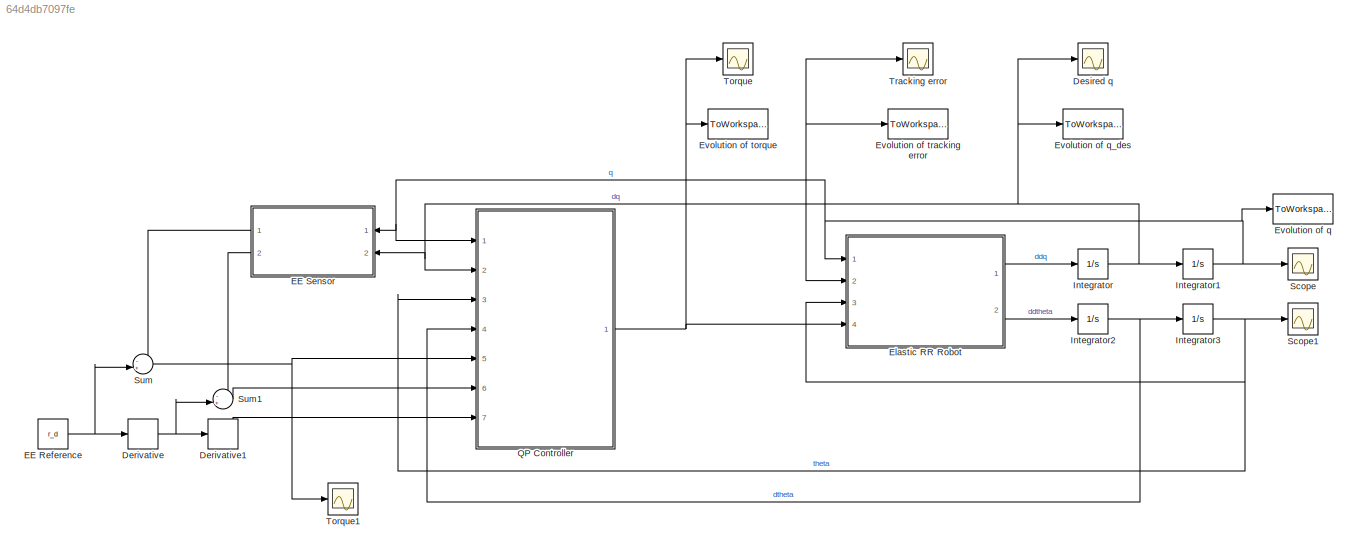
MODEL slx_64d4db7097fe
KIND model
CONFIG AbsTol = auto
CONFIG EnableMultiTasking = off
CONFIG FixedStep = auto
CONFIG MaxStep = auto
CONFIG MinStep = auto
CONFIG RelTol = 1e-3
CONFIG SampleTimeConstraint = Unconstrained
CONFIG SolverName = VariableStepAuto
CONFIG StartTime = 0.0
CONFIG StopTime = 10.0
BLOCK [Derivative] Derivative
BLOCK [Derivative] Derivative1
BLOCK [Scope] Desired q
  Floating = off
  NumInputPorts = 1
  Ports = [1]
  ScopeSpecificationString = Simulink.scopes.TimeScopeBlockCfg('CurrentConfiguration', extmgr.ConfigurationSet(extmgr.Configuration('Core','General UI',true),extmgr.Configuration('Core','Source UI',true),extmgr.Configuration('Sources','WiredSimulink',true,'DataLoggingVariableName','ScopeData2'),extmgr.Configuration('Visuals','Time Domain',true,'SerializedDisplays',{struct('MinYLimReal','-26182722.83835','MaxYLimReal','1748209...<+1483ch>
BLOCK [Constant] EE Reference
  Value = r_d
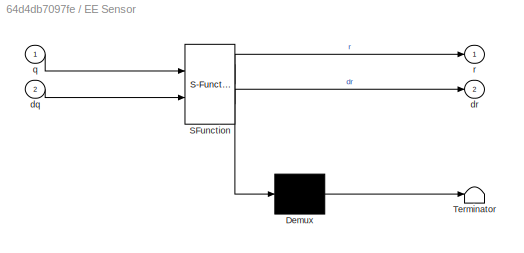
BLOCK [SubSystem] EE Sensor
  ErrorFcn = Stateflow.Translate.translate
  PermitHierarchicalResolution = ExplicitOnly
  Ports = [2, 2]
  RequestExecContextInheritance = off
  SFBlockType = MATLAB Function
  TreatAsAtomicUnit = on
BLOCK [Demux] EE Sensor/ Demux 
  Outputs = 1
  Ports = [1, 1]
BLOCK [S-Function] EE Sensor/ SFunction 
  EnableBusSupport = on
  FunctionName = sf_sfun
  Parameters = a1,a2
  PortCounts = [2 3]
  Ports = [2, 3]
  SFcnIsStateOwnerBlock = off
  SFunctionDeploymentMode = off
  Tag = Stateflow S-Function 3
BLOCK [Terminator] EE Sensor/ Terminator 
BLOCK [Inport] EE Sensor/dq
  Port = 2
BLOCK [Outport] EE Sensor/dr
  Port = 2
BLOCK [Inport] EE Sensor/q
BLOCK [Outport] EE Sensor/r
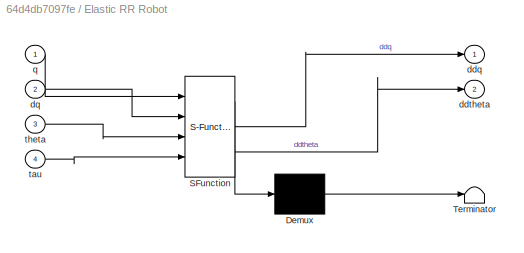
BLOCK [SubSystem] Elastic RR Robot
  ErrorFcn = Stateflow.Translate.translate
  PermitHierarchicalResolution = ExplicitOnly
  Ports = [4, 2]
  RequestExecContextInheritance = off
  SFBlockType = MATLAB Function
  TreatAsAtomicUnit = on
BLOCK [Demux] Elastic RR Robot/ Demux 
  Outputs = 1
  Ports = [1, 1]
BLOCK [S-Function] Elastic RR Robot/ SFunction 
  EnableBusSupport = on
  FunctionName = sf_sfun
  Parameters = B,K,S,a1,a2,m1,m2
  PortCounts = [4 3]
  Ports = [4, 3]
  SFcnIsStateOwnerBlock = off
  SFunctionDeploymentMode = off
  Tag = Stateflow S-Function 2
BLOCK [Terminator] Elastic RR Robot/ Terminator 
BLOCK [Outport] Elastic RR Robot/ddq
BLOCK [Outport] Elastic RR Robot/ddtheta
  Port = 2
BLOCK [Inport] Elastic RR Robot/dq
  Port = 2
BLOCK [Inport] Elastic RR Robot/q
BLOCK [Inport] Elastic RR Robot/tau
  Port = 4
BLOCK [Inport] Elastic RR Robot/theta
  Port = 3
BLOCK [ToWorkspace] Evolution of q
  FixptAsFi = on
  MaxDataPoints = inf
  Ports = [1]
  SampleTime = -1
  SaveFormat = Timeseries
  VariableName = q_out
BLOCK [ToWorkspace] Evolution of q_des
  FixptAsFi = on
  MaxDataPoints = inf
  Ports = [1]
  SampleTime = -1
  SaveFormat = Timeseries
  VariableName = q_des_out
BLOCK [ToWorkspace] Evolution of torque
  FixptAsFi = on
  MaxDataPoints = inf
  Ports = [1]
  SampleTime = -1
  SaveFormat = Timeseries
  VariableName = tau_out
BLOCK [ToWorkspace] Evolution of tracking error
  FixptAsFi = on
  MaxDataPoints = inf
  Ports = [1]
  SampleTime = -1
  SaveFormat = Timeseries
  VariableName = e_out
BLOCK [Integrator] Integrator
  InitialCondition = dq0
  Ports = [1, 1]
BLOCK [Integrator] Integrator1
  InitialCondition = q0
  Ports = [1, 1]
BLOCK [Integrator] Integrator2
  InitialCondition = dtheta0
  Ports = [1, 1]
BLOCK [Integrator] Integrator3
  InitialCondition = theta0
  Ports = [1, 1]
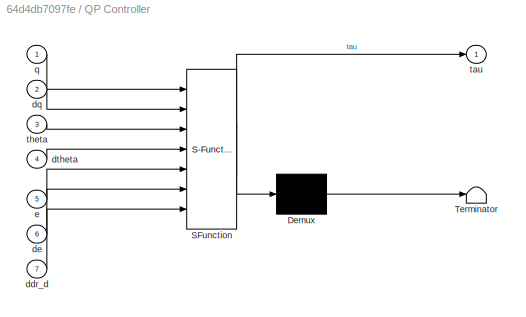
BLOCK [SubSystem] QP Controller
  ErrorFcn = Stateflow.Translate.translate
  PermitHierarchicalResolution = ExplicitOnly
  Ports = [7, 1]
  RequestExecContextInheritance = off
  SFBlockType = MATLAB Function
  TreatAsAtomicUnit = on
BLOCK [Demux] QP Controller/ Demux 
  Outputs = 1
  Ports = [1, 1]
BLOCK [S-Function] QP Controller/ SFunction 
  EnableBusSupport = on
  FunctionName = sf_sfun
  Parameters = B,Kbar,Kp,Kv,S,a1,a2,m1,m2
  PortCounts = [7 2]
  Ports = [7, 2]
  SFcnIsStateOwnerBlock = off
  SFunctionDeploymentMode = off
  Tag = Stateflow S-Function 1
BLOCK [Terminator] QP Controller/ Terminator 
BLOCK [Inport] QP Controller/ddr_d
  Port = 7
BLOCK [Inport] QP Controller/de
  Port = 6
BLOCK [Inport] QP Controller/dq
  Port = 2
BLOCK [Inport] QP Controller/dtheta
  Port = 4
BLOCK [Inport] QP Controller/e
  Port = 5
BLOCK [Inport] QP Controller/q
BLOCK [Outport] QP Controller/tau
BLOCK [Inport] QP Controller/theta
  Port = 3
BLOCK [Scope] Scope
  Floating = off
  NumInputPorts = 1
  Ports = [1]
  ScopeSpecificationString = Simulink.scopes.TimeScopeBlockCfg('CurrentConfiguration', extmgr.ConfigurationSet(extmgr.Configuration('Core','General UI',true),extmgr.Configuration('Core','Source UI',true),extmgr.Configuration('Sources','WiredSimulink',true),extmgr.Configuration('Visuals','Time Domain',true,'SerializedDisplays',{struct('MinYLimReal','-2.06309','MaxYLimReal','0.81101','YLabelReal','','MinYLimMag','0.00000','MaxY...<+1356ch>
BLOCK [Scope] Scope1
  Floating = off
  NumInputPorts = 1
  Ports = [1]
  ScopeSpecificationString = Simulink.scopes.TimeScopeBlockCfg('CurrentConfiguration', extmgr.ConfigurationSet(extmgr.Configuration('Core','General UI',true),extmgr.Configuration('Core','Source UI',true),extmgr.Configuration('Sources','WiredSimulink',true,'DataLoggingVariableName','ScopeData1'),extmgr.Configuration('Visuals','Time Domain',true,'SerializedDisplays',{struct('MinYLimReal','-1.76715','MaxYLimReal','0.19635','YLab...<+1376ch>
BLOCK [Sum] Sum
  Inputs = -+|
  Ports = [2, 1]
BLOCK [Sum] Sum1
  Inputs = -+|
  Ports = [2, 1]
BLOCK [Scope] Torque
  Floating = off
  NumInputPorts = 1
  Ports = [1]
  ScopeSpecificationString = Simulink.scopes.TimeScopeBlockCfg('CurrentConfiguration', extmgr.ConfigurationSet(extmgr.Configuration('Core','General UI',true),extmgr.Configuration('Core','Source UI',true),extmgr.Configuration('Sources','WiredSimulink',true,'DataLoggingVariableName','ScopeData1'),extmgr.Configuration('Visuals','Time Domain',true,'SerializedDisplays',{struct('MinYLimReal','-0.000000000008','MaxYLimReal','0.00000...<+1517ch>
BLOCK [Scope] Torque1
  Floating = off
  NumInputPorts = 1
  Ports = [1]
  ScopeSpecificationString = Simulink.scopes.TimeScopeBlockCfg('CurrentConfiguration', extmgr.ConfigurationSet(extmgr.Configuration('Core','General UI',true),extmgr.Configuration('Core','Source UI',true),extmgr.Configuration('Sources','WiredSimulink',true,'DataLoggingVariableName','ScopeData1'),extmgr.Configuration('Visuals','Time Domain',true,'SerializedDisplays',{struct('MinYLimReal','-0.10391','MaxYLimReal','1.19041','YLab...<+1441ch>
BLOCK [Scope] Tracking error
  Floating = off
  NumInputPorts = 1
  Ports = [1]
  ScopeSpecificationString = Simulink.scopes.TimeScopeBlockCfg('CurrentConfiguration', extmgr.ConfigurationSet(extmgr.Configuration('Core','General UI',true),extmgr.Configuration('Core','Source UI',true),extmgr.Configuration('Sources','WiredSimulink',true,'DataLoggingVariableName','ScopeData3'),extmgr.Configuration('Visuals','Time Domain',true,'SerializedDisplays',{struct('MinYLimReal','-0.01486','MaxYLimReal','0.02953','YLab...<+1443ch>
LINE Derivative1:1 -> QP Controller:7
NET Derivative:1 -> Derivative1:1, Sum1:2
NET EE Reference:1 -> Derivative:1, Sum:2
LINE EE Sensor:1 -> Sum:1
LINE EE Sensor:2 -> Sum1:1
LINE Elastic RR Robot:1 -> Integrator:1
LINE Elastic RR Robot:2 -> Integrator2:1
NET Integrator1:1 -> EE Sensor:1, Elastic RR Robot:1, Evolution of q:1, QP Controller:1, Scope:1
NET Integrator2:1 -> Integrator3:1, QP Controller:4
NET Integrator3:1 -> Elastic RR Robot:3, QP Controller:3, Scope1:1
NET Integrator:1 -> Desired q:1, EE Sensor:2, Elastic RR Robot:2, Evolution of q_des:1, Evolution of tracking error:1, Integrator1:1, QP Controller:2, Tracking error:1
NET QP Controller:1 -> Elastic RR Robot:4, Evolution of torque:1, Torque:1
LINE Sum1:1 -> QP Controller:6
NET Sum:1 -> QP Controller:5, Torque1:1
note: NET lines group one-source signal fan-out (src -> all destinations, sorted); 1:1 wires keep LINE
CHART QP Controller states=1 transitions=1
  STATE_LABEL 'eML_blk_kernel()'
  STATE_LABEL "SCRIPT:\nfunction tau  = fcn(q, dq, theta, dtheta, e, de, ddr_d, Kbar, B, S, ...\n    m1, m2, a1, a2, Kp, Kv)\n\n% Variable size for codegen\ncoder.varsize('x_star');\n\n% Dynamic and Kinematic Matrices\n[p, J, dJ] = kinematics(q, dq, a1, a2);\n[M, C, G] = dynamics(q, dq, m1, m2, a1, a2);\n\n% Getting Sizes\nn = 2;\nnj = 2;\nm = 2;\n\n% T1: Dynamics Compensation\nA1 = [M, zeros(n,nj);\n    zeros(nj,nj), B];\nA1 = [A...<+441ch>"
CHART Elastic RR Robot states=1 transitions=1
  STATE_LABEL 'eML_blk_kernel()'
  STATE_LABEL "SCRIPT:\nfunction [ddq, ddtheta] = fcn(q, dq, theta, tau, K, B, S, m1, m2, a1, a2)\n\n% Compute dynamic matrices\n[M, C, G] = dynamics(q, dq, m1, m2, a1, a2);\n\n% State evolutions\nddq = M\\(S.'*K*(theta - q) - C*dq - G);\nddtheta = B\\(tau - K*(theta - q));\n"
CHART EE Sensor states=1 transitions=1
  STATE_LABEL 'eML_blk_kernel()'
  STATE_LABEL 'SCRIPT:\nfunction [r, dr] = fcn(q, dq, a2, a1)\n\n[r, J, ~] = kinematics(q, dq, a1, a2);\ndr = J*dq;\n'
CHART  states=0 transitions=0
CHART  states=0 transitions=0
CHART  states=0 transitions=0
